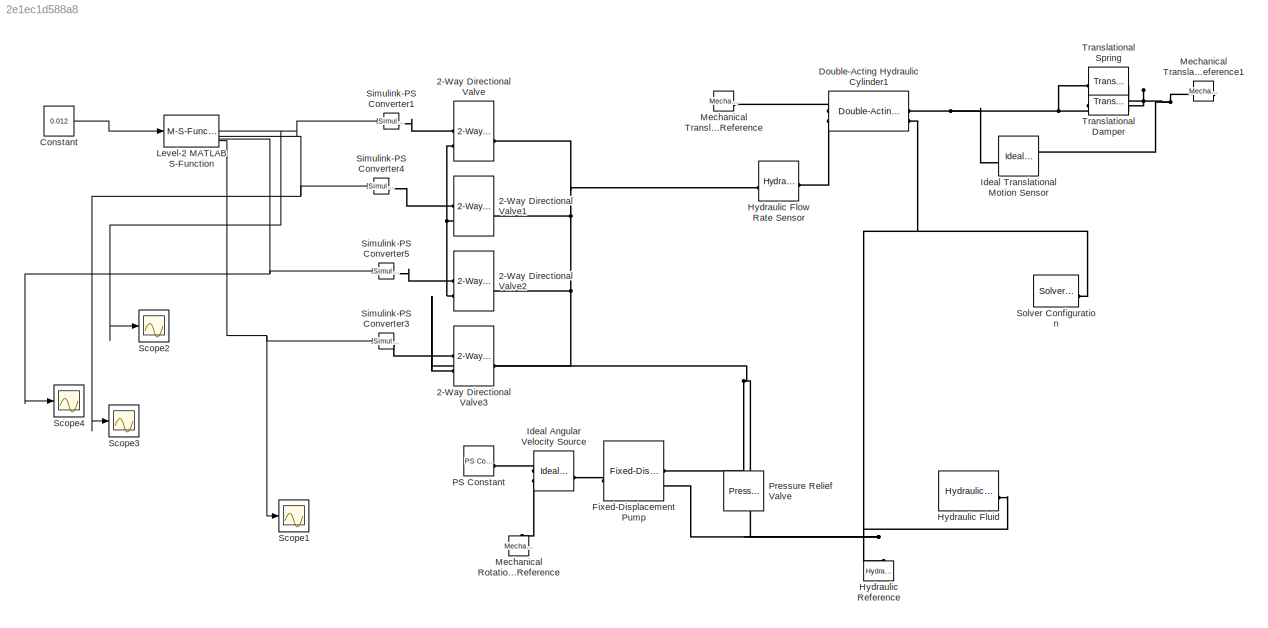
MODEL slx_2e1ec1d588a8
KIND model
CONFIG AbsTol = auto
CONFIG EnableMultiTasking = off
CONFIG FixedStep = auto
CONFIG MaxStep = auto
CONFIG MinStep = auto
CONFIG RelTol = 1e-3
CONFIG SampleTimeConstraint = Unconstrained
CONFIG SolverName = VariableStepAuto
CONFIG StartTime = 0
CONFIG StopTime = 1000
BLOCK [Reference] 2-Way Directional Valve  REF=sh_lib/Valves/Directional Valves/2-Way Directional
Valve
  SourceBlock = sh_lib/Valves/Directional Valves/2-Way Directional\nValve
  SourceType = 2-Way Directional\nValve
BLOCK [Reference] 2-Way Directional Valve1  REF=sh_lib/Valves/Directional Valves/2-Way Directional
Valve
  SourceBlock = sh_lib/Valves/Directional Valves/2-Way Directional\nValve
  SourceType = 2-Way Directional\nValve
BLOCK [Reference] 2-Way Directional Valve2  REF=sh_lib/Valves/Directional Valves/2-Way Directional
Valve
  SourceBlock = sh_lib/Valves/Directional Valves/2-Way Directional\nValve
  SourceType = 2-Way Directional\nValve
BLOCK [Reference] 2-Way Directional Valve3  REF=sh_lib/Valves/Directional Valves/2-Way Directional
Valve
  SourceBlock = sh_lib/Valves/Directional Valves/2-Way Directional\nValve
  SourceType = 2-Way Directional\nValve
BLOCK [Constant] Constant
  Value = 0.012
BLOCK [Reference] Double-Acting Hydraulic Cylinder1  REF=sh_lib/Hydraulic Cylinders/Double-Acting
Hydraulic Cylinder
  SourceBlock = sh_lib/Hydraulic Cylinders/Double-Acting\nHydraulic Cylinder
  SourceType = Double-Acting\nHydraulic Cylinder
BLOCK [Reference] Fixed-Displacement Pump  REF=sh_lib/Pumps and Motors/Fixed-Displacement
Pump
  SourceBlock = sh_lib/Pumps and Motors/Fixed-Displacement\nPump
  SourceType = Fixed-Displacement\nPump
BLOCK [Reference] Hydraulic Flow Rate Sensor  REF=fl_lib/Hydraulic/Hydraulic Sensors/Hydraulic Flow Rate
Sensor
  SourceBlock = fl_lib/Hydraulic/Hydraulic Sensors/Hydraulic Flow Rate\nSensor
  SourceType = Hydraulic Flow Rate\nSensor
BLOCK [Reference] Hydraulic Fluid  REF=sh_lib/Hydraulic Utilities/Hydraulic Fluid
  SourceBlock = sh_lib/Hydraulic Utilities/Hydraulic Fluid
  SourceType = Hydraulic Fluid
BLOCK [Reference] Hydraulic Reference  REF=fl_lib/Hydraulic/Hydraulic Elements/Hydraulic Reference
  NameLocation = right
  SourceBlock = fl_lib/Hydraulic/Hydraulic Elements/Hydraulic Reference
  SourceType = Hydraulic Reference
BLOCK [Reference] Ideal Angular Velocity Source  REF=fl_lib/Mechanical/Mechanical Sources/Ideal Angular
Velocity Source
  SourceBlock = fl_lib/Mechanical/Mechanical Sources/Ideal Angular\nVelocity Source
  SourceType = Ideal Angular\nVelocity Source
BLOCK [Reference] Ideal Translational Motion Sensor  REF=fl_lib/Mechanical/Mechanical Sensors/Ideal Translational
Motion Sensor
  SourceBlock = fl_lib/Mechanical/Mechanical Sensors/Ideal Translational\nMotion Sensor
  SourceType = Ideal Translational\nMotion Sensor
BLOCK [M-S-Function] Level-2 MATLAB S-Function
  FunctionName = sfunc3
BLOCK [Reference] Mechanical Rotational Reference  REF=fl_lib/Mechanical/Rotational Elements/Mechanical
Rotational Reference
  NameLocation = right
  SourceBlock = fl_lib/Mechanical/Rotational Elements/Mechanical\nRotational Reference
  SourceType = Mechanical\nRotational Reference
BLOCK [Reference] Mechanical Translational Reference  REF=fl_lib/Mechanical/Translational
Elements/Mechanical
Translational
Reference
  SourceBlock = fl_lib/Mechanical/Translational\nElements/Mechanical\nTranslational\nReference
  SourceType = Mechanical\nTranslational\nReference
BLOCK [Reference] Mechanical Translational Reference1  REF=fl_lib/Mechanical/Translational
Elements/Mechanical
Translational
Reference
  NameLocation = top
  SourceBlock = fl_lib/Mechanical/Translational\nElements/Mechanical\nTranslational\nReference
  SourceType = Mechanical\nTranslational\nReference
BLOCK [Reference] PS Constant  REF=fl_lib/Physical Signals/Sources/PS Constant
  SourceBlock = fl_lib/Physical Signals/Sources/PS Constant
  SourceType = PS Constant
BLOCK [Reference] Pressure Relief Valve  REF=sh_lib/Valves/Pressure Control
Valves/Pressure Relief
Valve
  NameLocation = left
  SourceBlock = sh_lib/Valves/Pressure Control\nValves/Pressure Relief\nValve
  SourceType = Pressure Relief\nValve
BLOCK [Scope] Scope1
  Floating = off
  NumInputPorts = 1
  ScopeSpecificationString = Simulink.scopes.TimeScopeBlockCfg('CurrentConfiguration', extmgr.ConfigurationSet(extmgr.Configuration('Core','General UI',true),extmgr.Configuration('Core','Source UI',true),extmgr.Configuration('Sources','WiredSimulink',true,'DataLoggingVariableName','ScopeData1'),extmgr.Configuration('Visuals','Time Domain',true,'SerializedDisplays',{struct('MinYLimReal','-1.00000','MaxYLimReal','1.00000','YLab...<+1465ch>
BLOCK [Scope] Scope2
  Floating = off
  NumInputPorts = 1
  ScopeSpecificationString = Simulink.scopes.TimeScopeBlockCfg('CurrentConfiguration', extmgr.ConfigurationSet(extmgr.Configuration('Core','General UI',true),extmgr.Configuration('Core','Source UI',true),extmgr.Configuration('Sources','WiredSimulink',true,'DataLoggingVariableName','ScopeData1'),extmgr.Configuration('Visuals','Time Domain',true,'SerializedDisplays',{struct('MinYLimReal','0.9','MaxYLimReal','1.1','YLabelReal','...<+1431ch>
BLOCK [Scope] Scope3
  Floating = off
  NumInputPorts = 1
  ScopeSpecificationString = Simulink.scopes.TimeScopeBlockCfg('CurrentConfiguration', extmgr.ConfigurationSet(extmgr.Configuration('Core','General UI',true),extmgr.Configuration('Core','Source UI',true),extmgr.Configuration('Sources','WiredSimulink',true,'DataLoggingVariableName','ScopeData2'),extmgr.Configuration('Visuals','Time Domain',true,'SerializedDisplays',{struct('MinYLimReal','0.9','MaxYLimReal','1.1','YLabelReal','...<+1431ch>
BLOCK [Scope] Scope4
  Floating = off
  NumInputPorts = 1
  ScopeSpecificationString = Simulink.scopes.TimeScopeBlockCfg('CurrentConfiguration', extmgr.ConfigurationSet(extmgr.Configuration('Core','General UI',true),extmgr.Configuration('Core','Source UI',true),extmgr.Configuration('Sources','WiredSimulink',true,'DataLoggingVariableName','ScopeData3'),extmgr.Configuration('Visuals','Time Domain',true,'SerializedDisplays',{struct('MinYLimReal','-1.00000','MaxYLimReal','1.00000','YLab...<+1465ch>
BLOCK [Reference] Simulink-PS Converter1  REF=nesl_utility/Simulink-PS
Converter
  SourceBlock = nesl_utility/Simulink-PS\nConverter
  SourceType = Simulink-PS\nConverter
BLOCK [Reference] Simulink-PS Converter3  REF=nesl_utility/Simulink-PS
Converter
  SourceBlock = nesl_utility/Simulink-PS\nConverter
  SourceType = Simulink-PS\nConverter
BLOCK [Reference] Simulink-PS Converter4  REF=nesl_utility/Simulink-PS
Converter
  SourceBlock = nesl_utility/Simulink-PS\nConverter
  SourceType = Simulink-PS\nConverter
BLOCK [Reference] Simulink-PS Converter5  REF=nesl_utility/Simulink-PS
Converter
  SourceBlock = nesl_utility/Simulink-PS\nConverter
  SourceType = Simulink-PS\nConverter
BLOCK [Reference] Solver Configuration  REF=nesl_utility/Solver
Configuration
  SourceBlock = nesl_utility/Solver\nConfiguration
  SourceType = Solver\nConfiguration
BLOCK [Reference] Translational Damper  REF=fl_lib/Mechanical/Translational
Elements/Translational Damper
  NameLocation = top
  SourceBlock = fl_lib/Mechanical/Translational\nElements/Translational Damper
  SourceType = Translational Damper
BLOCK [Reference] Translational Spring  REF=fl_lib/Mechanical/Translational
Elements/Translational Spring
  SourceBlock = fl_lib/Mechanical/Translational\nElements/Translational Spring
  SourceType = Translational Spring
LINE Constant:1 -> Level-2 MATLAB S-Function:1
NET Level-2 MATLAB S-Function:1 -> Scope2:1, Simulink-PS Converter1:1
NET Level-2 MATLAB S-Function:2 -> Scope3:1, Simulink-PS Converter4:1
NET Level-2 MATLAB S-Function:3 -> Scope4:1, Simulink-PS Converter5:1
NET Level-2 MATLAB S-Function:4 -> Scope1:1, Simulink-PS Converter3:1
PLINE 2-Way Directional Valve1:LConn1 -- Simulink-PS Converter4:RConn1
PNET net1: 2-Way Directional Valve1:LConn2 -- 2-Way Directional Valve2:LConn2 -- 2-Way Directional Valve3:LConn2 -- 2-Way Directional Valve:LConn2 -- Fixed-Displacement Pump:RConn1 -- Pressure Relief Valve:LConn1
PNET net2: 2-Way Directional Valve1:RConn1 -- 2-Way Directional Valve2:RConn1 -- 2-Way Directional Valve3:RConn1 -- 2-Way Directional Valve:RConn1 -- Hydraulic Flow Rate Sensor:LConn1
PLINE 2-Way Directional Valve2:LConn1 -- Simulink-PS Converter5:RConn1
PLINE 2-Way Directional Valve3:LConn1 -- Simulink-PS Converter3:RConn1
PLINE 2-Way Directional Valve:LConn1 -- Simulink-PS Converter1:RConn1
PLINE Double-Acting Hydraulic Cylinder1:LConn1 -- Mechanical Translational Reference:LConn1
PLINE Double-Acting Hydraulic Cylinder1:LConn2 -- Hydraulic Flow Rate Sensor:RConn2
PNET net3: Double-Acting Hydraulic Cylinder1:RConn1 -- Ideal Translational Motion Sensor:LConn1 -- Translational Damper:LConn1 -- Translational Spring:LConn1
PNET net4: Double-Acting Hydraulic Cylinder1:RConn2 -- Fixed-Displacement Pump:RConn2 -- Hydraulic Fluid:RConn1 -- Hydraulic Reference:LConn1 -- Pressure Relief Valve:RConn1 -- Solver Configuration:RConn1
PLINE Fixed-Displacement Pump:LConn1 -- Ideal Angular Velocity Source:LConn1
PLINE Ideal Angular Velocity Source:RConn1 -- PS Constant:RConn1
PLINE Ideal Angular Velocity Source:RConn2 -- Mechanical Rotational Reference:LConn1
PNET net5: Ideal Translational Motion Sensor:RConn1 -- Mechanical Translational Reference1:LConn1 -- Translational Damper:RConn1 -- Translational Spring:RConn1
note: NET lines group one-source signal fan-out (src -> all destinations, sorted); 1:1 wires keep LINE; PNET lines group multi-terminal physical nets as a canonical sorted terminal list (undirected conserving connections); 2-terminal nets keep the pairwise PLINE form
